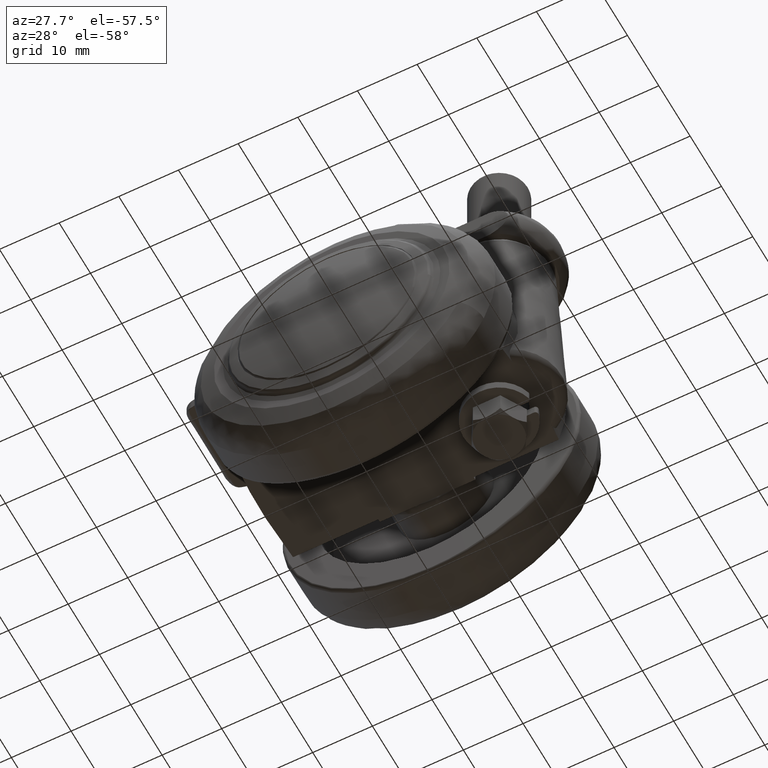
[diagram: clean part render]
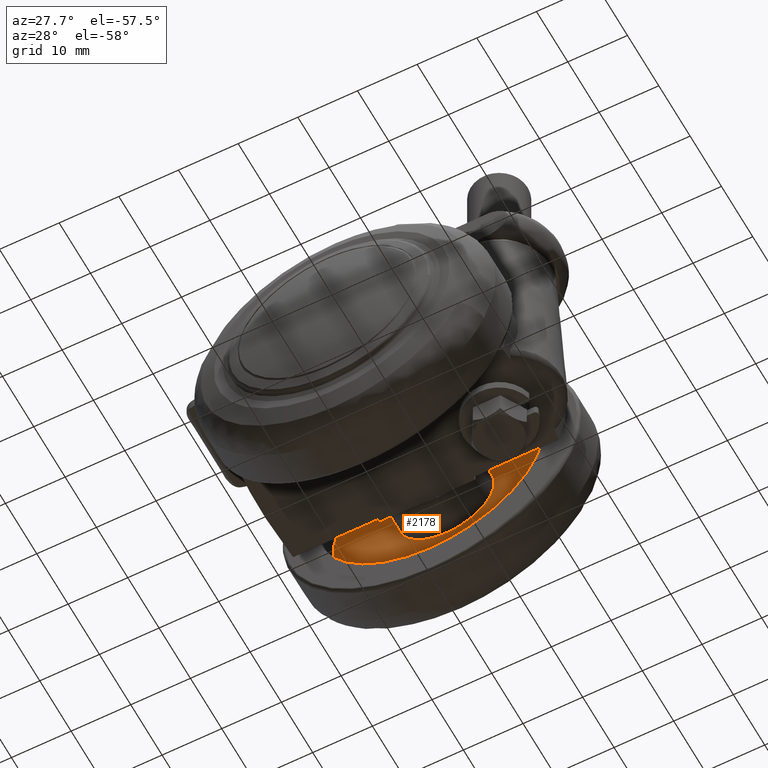
[diagram: same view with one face highlighted and labeled with its STEP entity id]
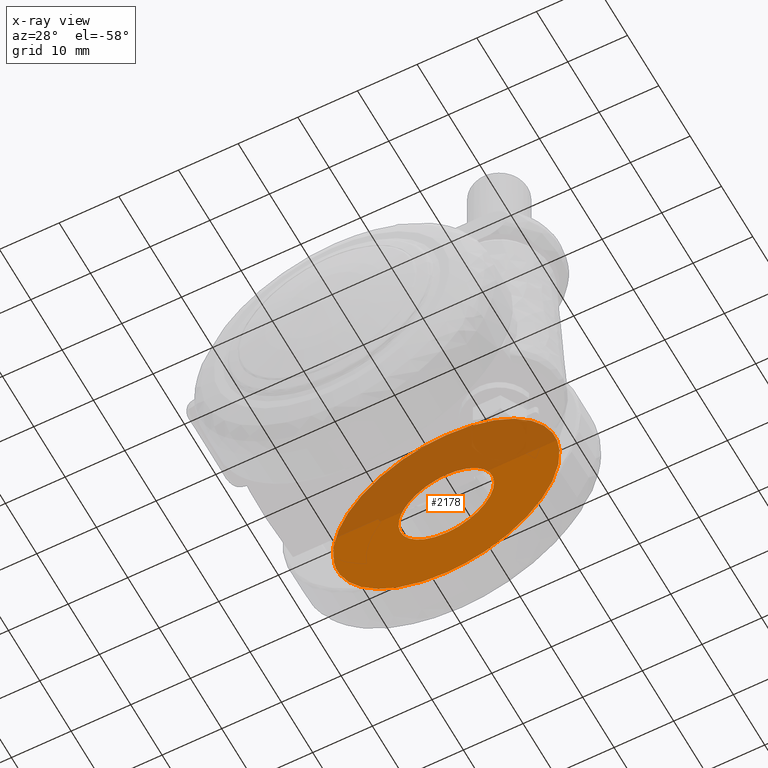
[diagram: x-ray of the same camera — body ghosted, the highlighted face saturated]
A machine part, auxiliary view. The second image highlights one B-rep face of the part: STEP entity #2178.
The next image is the same camera in x-ray: the body ghosted, the highlighted face saturated — about 41% of this face is hidden behind the body in this view.
In plain terms, the highlighted face is a freeform B-spline surface patch.
Its self-contained STEP definition (entity closure, byte-faithful):
#707=CARTESIAN_POINT('',(18.867183934076060,-15.500000000000000,-2.242625781784472));
#708=VERTEX_POINT('',#707);
#714=CARTESIAN_POINT('',(0.0,-15.500000000000000,19.0));
#715=VERTEX_POINT('',#714);
#716=CARTESIAN_POINT('',(18.867183934076067,-15.500000000000002,-2.242625781784472));
#717=CARTESIAN_POINT('',(19.000000000000004,-15.500000000000002,-1.125245804602314));
#718=CARTESIAN_POINT('',(19.0,-15.500000000000000,1.789254E-015));
#719=CARTESIAN_POINT('',(18.999999999999993,-15.500000000000004,19.000000000000011));
#720=CARTESIAN_POINT('',(0.0,-15.500000000000000,19.0));
#728=(BOUNDED_CURVE()B_SPLINE_CURVE(2,(#716,#717,#718,#719,#720),.UNSPECIFIED.,.F.,.U.)B_SPLINE_CURVE_WITH_KNOTS((3,2,3),(0.229562694557769,0.250000000000000,0.500000000000000),.UNSPECIFIED.)CURVE()GEOMETRIC_REPRESENTATION_ITEM()RATIONAL_B_SPLINE_CURVE((0.956027187439954,0.976056207300605,1.0,0.707106781186548,1.0))REPRESENTATION_ITEM(''));
#729=EDGE_CURVE('',#708,#715,#728,.T.);
#731=CARTESIAN_POINT('',(-18.964561776099870,-15.500000000000000,1.159912341684948));
#732=VERTEX_POINT('',#731);
#733=CARTESIAN_POINT('',(0.0,-15.500000000000000,19.0));
#734=CARTESIAN_POINT('',(-17.873424627987653,-15.500000000000011,19.000000000000004));
#735=CARTESIAN_POINT('',(-18.964561776099874,-15.500000000000002,1.159912341684948));
#743=(BOUNDED_CURVE()B_SPLINE_CURVE(2,(#733,#734,#735),.UNSPECIFIED.,.F.,.U.)B_SPLINE_CURVE_WITH_KNOTS((3,3),(0.500000000000000,0.739333052402168),.UNSPECIFIED.)CURVE()GEOMETRIC_REPRESENTATION_ITEM()RATIONAL_B_SPLINE_CURVE((1.0,0.719603887653921,0.976072234903748))REPRESENTATION_ITEM(''));
#744=EDGE_CURVE('',#715,#732,#743,.T.);
#818=CARTESIAN_POINT('',(0.0,-15.500000000000000,-19.0));
#819=VERTEX_POINT('',#818);
#820=CARTESIAN_POINT('',(-18.964561776099874,-15.500000000000002,1.159912341684948));
#821=CARTESIAN_POINT('',(-18.999999999999993,-15.499999999999995,0.580497534042113));
#822=CARTESIAN_POINT('',(-19.0,-15.500000000000000,1.789254E-015));
#823=CARTESIAN_POINT('',(-18.999999999999993,-15.500000000000004,-18.999999999999993));
#824=CARTESIAN_POINT('',(0.0,-15.500000000000000,-19.0));
#832=(BOUNDED_CURVE()B_SPLINE_CURVE(2,(#820,#821,#822,#823,#824),.UNSPECIFIED.,.F.,.U.)B_SPLINE_CURVE_WITH_KNOTS((3,2,3),(0.739333052402168,0.750000000000000,1.0),.UNSPECIFIED.)CURVE()GEOMETRIC_REPRESENTATION_ITEM()RATIONAL_B_SPLINE_CURVE((0.976072234903748,0.987502893532626,1.0,0.707106781186548,1.0))REPRESENTATION_ITEM(''));
#833=EDGE_CURVE('',#732,#819,#832,.T.);
#835=CARTESIAN_POINT('',(0.0,-15.500000000000000,-19.0));
#836=CARTESIAN_POINT('',(16.875338219963027,-15.500000000000002,-19.000000000000004));
#837=CARTESIAN_POINT('',(18.867183934076067,-15.500000000000002,-2.242625781784472));
#845=(BOUNDED_CURVE()B_SPLINE_CURVE(2,(#835,#836,#837),.UNSPECIFIED.,.F.,.U.)B_SPLINE_CURVE_WITH_KNOTS((3,3),(0.0,0.229562694557769),.UNSPECIFIED.)CURVE()GEOMETRIC_REPRESENTATION_ITEM()RATIONAL_B_SPLINE_CURVE((1.0,0.731050573885943,0.956027187439954))REPRESENTATION_ITEM(''));
#846=EDGE_CURVE('',#819,#708,#845,.T.);
#938=CARTESIAN_POINT('',(6.260868117324914,-15.500000000000000,4.980113494433962));
#939=VERTEX_POINT('',#938);
#945=CARTESIAN_POINT('',(0.0,-15.500000000000000,-7.999999999999998));
#946=VERTEX_POINT('',#945);
#947=CARTESIAN_POINT('',(0.0,-15.500000000000000,-7.999999999999998));
#948=CARTESIAN_POINT('',(8.0,-15.500000000000004,-7.999999999999999));
#949=CARTESIAN_POINT('',(8.0,-15.500000000000000,1.789254E-015));
#950=CARTESIAN_POINT('',(8.0,-15.499999999999996,2.793722487838900));
#951=CARTESIAN_POINT('',(6.260868117324915,-15.499999999999996,4.980113494433962));
#959=(BOUNDED_CURVE()B_SPLINE_CURVE(2,(#947,#948,#949,#950,#951),.UNSPECIFIED.,.F.,.U.)B_SPLINE_CURVE_WITH_KNOTS((3,2,3),(0.0,0.250000000000000,0.357863790383099),.UNSPECIFIED.)CURVE()GEOMETRIC_REPRESENTATION_ITEM()RATIONAL_B_SPLINE_CURVE((1.0,0.707106781186548,1.0,0.873629708965099,0.856305646592916))REPRESENTATION_ITEM(''));
#960=EDGE_CURVE('',#946,#939,#959,.T.);
#962=CARTESIAN_POINT('',(-4.980113885802535,-15.500000000000000,6.260867806016989));
#963=VERTEX_POINT('',#962);
#964=CARTESIAN_POINT('',(-4.980113885802535,-15.499999999999996,6.260867806016988));
#965=CARTESIAN_POINT('',(-8.0,-15.500000000000005,3.858744452382991));
#966=CARTESIAN_POINT('',(-8.0,-15.500000000000000,1.789254E-015));
#967=CARTESIAN_POINT('',(-8.0,-15.500000000000004,-7.999999999999999));
#968=CARTESIAN_POINT('',(0.0,-15.500000000000000,-7.999999999999998));
#976=(BOUNDED_CURVE()B_SPLINE_CURVE(2,(#964,#965,#966,#967,#968),.UNSPECIFIED.,.F.,.U.)B_SPLINE_CURVE_WITH_KNOTS((3,2,3),(0.607863799845580,0.750000000000000,1.0),.UNSPECIFIED.)CURVE()GEOMETRIC_REPRESENTATION_ITEM()RATIONAL_B_SPLINE_CURVE((0.856305643553368,0.833477083307435,1.0,0.707106781186548,1.0))REPRESENTATION_ITEM(''));
#977=EDGE_CURVE('',#963,#946,#976,.T.);
#1017=CARTESIAN_POINT('',(0.0,-15.500000000000000,8.000000000000002));
#1018=VERTEX_POINT('',#1017);
#1019=CARTESIAN_POINT('',(0.0,-15.500000000000000,8.000000000000002));
#1020=CARTESIAN_POINT('',(-2.793722768372724,-15.499999999999996,8.000000000000002));
#1021=CARTESIAN_POINT('',(-4.980113885802535,-15.499999999999996,6.260867806016988));
#1029=(BOUNDED_CURVE()B_SPLINE_CURVE(2,(#1019,#1020,#1021),.UNSPECIFIED.,.F.,.U.)B_SPLINE_CURVE_WITH_KNOTS((3,3),(0.500000000000000,0.607863799845580),.UNSPECIFIED.)CURVE()GEOMETRIC_REPRESENTATION_ITEM()RATIONAL_B_SPLINE_CURVE((1.0,0.873629697879112,0.856305643553368))REPRESENTATION_ITEM(''));
#1030=EDGE_CURVE('',#1018,#963,#1029,.T.);
#1032=CARTESIAN_POINT('',(6.260868117324915,-15.499999999999996,4.980113494433962));
#1033=CARTESIAN_POINT('',(3.858744760597227,-15.500000000000007,8.000000000000002));
#1034=CARTESIAN_POINT('',(0.0,-15.500000000000000,8.000000000000002));
#1042=(BOUNDED_CURVE()B_SPLINE_CURVE(2,(#1032,#1033,#1034),.UNSPECIFIED.,.F.,.U.)B_SPLINE_CURVE_WITH_KNOTS((3,3),(0.357863790383099,0.500000000000000),.UNSPECIFIED.)CURVE()GEOMETRIC_REPRESENTATION_ITEM()RATIONAL_B_SPLINE_CURVE((0.856305646592916,0.833477072221449,1.0))REPRESENTATION_ITEM(''));
#1043=EDGE_CURVE('',#939,#1018,#1042,.T.);
#2161=CARTESIAN_POINT('',(-20.897637839953578,-15.500000000000000,20.898099926348628));
#2162=CARTESIAN_POINT('',(-20.897637839953578,-15.500000000000000,-20.898100945588052));
#2163=CARTESIAN_POINT('',(20.897754372994580,-15.500000000000000,20.898099926348628));
#2164=CARTESIAN_POINT('',(20.897754372994580,-15.500000000000000,-20.898100945588052));
#2165=B_SPLINE_SURFACE_WITH_KNOTS('',1,1,((#2161,#2163),(#2162,#2164)),.UNSPECIFIED.,.F.,.F.,.U.,(2,2),(2,2),(0.0,41.796200871936684),(0.0,41.795392212948158),.UNSPECIFIED.);
#2166=ORIENTED_EDGE('',*,*,#833,.F.);
#2167=ORIENTED_EDGE('',*,*,#744,.F.);
#2168=ORIENTED_EDGE('',*,*,#729,.F.);
#2169=ORIENTED_EDGE('',*,*,#846,.F.);
#2170=EDGE_LOOP('',(#2166,#2167,#2168,#2169));
#2171=FACE_OUTER_BOUND('',#2170,.T.);
#2172=ORIENTED_EDGE('',*,*,#960,.T.);
#2173=ORIENTED_EDGE('',*,*,#1043,.T.);
#2174=ORIENTED_EDGE('',*,*,#1030,.T.);
#2175=ORIENTED_EDGE('',*,*,#977,.T.);
#2176=EDGE_LOOP('',(#2172,#2173,#2174,#2175));
#2177=FACE_BOUND('',#2176,.T.);
#2178=ADVANCED_FACE('',(#2171,#2177),#2165,.F.);